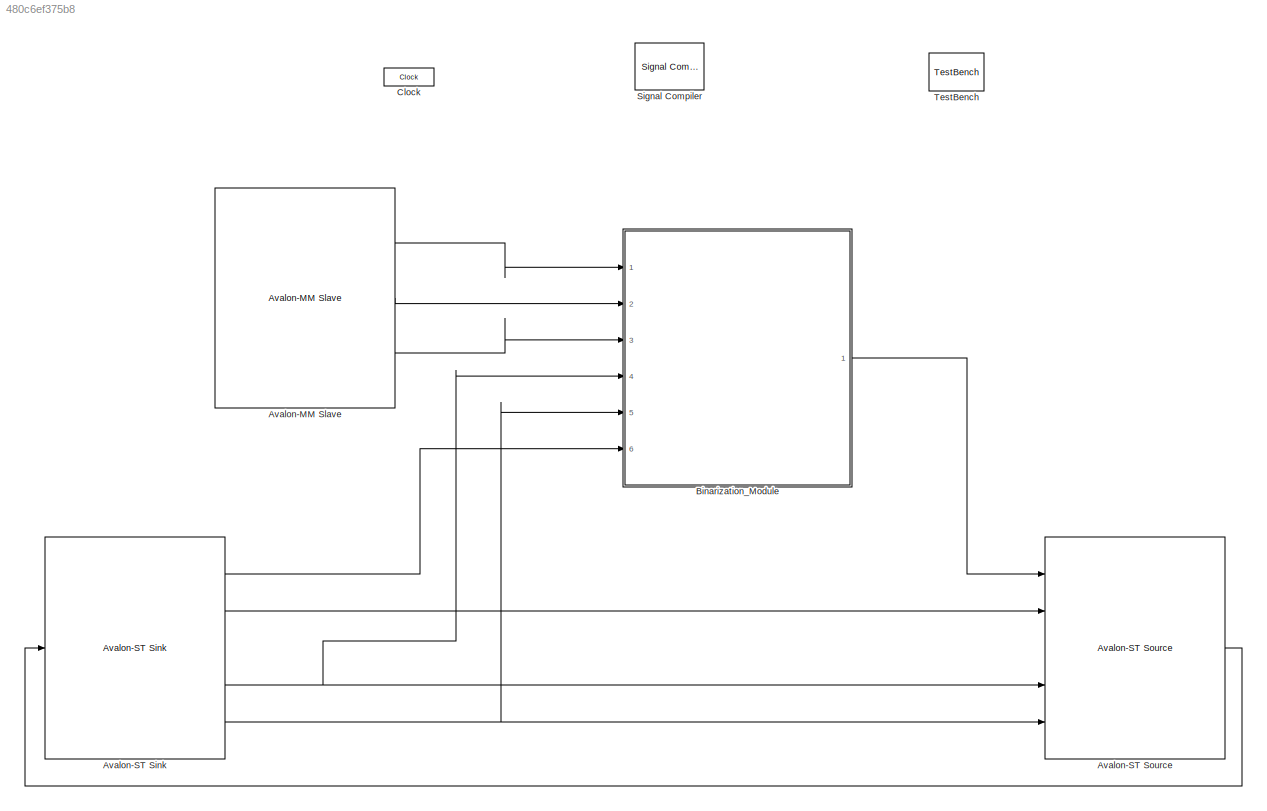
MODEL slx_480c6ef375b8
KIND model
CONFIG InitFcn = %% DSPBuilder Start\nalt_dspbuilder_update_model(bdroot)\n%% DSPBuilder End\n
BLOCK [Reference] Avalon-MM Slave  REF=allblocks_alteradspbuilder2/Avalon-MM Slave
  BusType = Unsigned Integer
  PORTTYPE = Output
  Ports = [3, 3]
  SourceBlock = allblocks_alteradspbuilder2/Avalon-MM Slave
  SourceType = Avalon-MM Slave AlteraBlockset
  SpecifyClock = off
  addrAlignment = Dynamic
  addrType = Write
  addrWidth = 2
  burst = off
  bwl = 32
  bwr = 0
  byteEnable = off
  externalType = Inferred
  flowCtrl = off
  iofile = <path>,<path>,<path>,
  irq = off
  maxBurst = 4
  pipeline = off
  readLatencyCycles = 0
  readLatencyFormat = Fixed
  readWaitStateCycles = 0
  receiveBeginTransfer = off
  useChipSelect = off
  waitStateFormat = Fixed
  writeWaitStateCycles = 1
BLOCK [Reference] Avalon-ST Sink  REF=allblocks_alteradspbuilder2/Avalon-ST Sink
  BusType = Unsigned Integer
  PORTTYPE = Output
  Ports = [5, 5]
  SourceBlock = allblocks_alteradspbuilder2/Avalon-ST Sink
  SourceType = Avalon-ST Sink AlteraBlockset
  SpecifyClock = off
  bwl = 24
  bwr = 0
  empty = off
  endOfPacket = on
  externalType = Inferred
  iofile = <path>,<path>,<path>,<path><+231ch>
  numOfChannels = 0
  numOfErrorDescriptors = 0
  readyLatency = 1
  startOfPacket = on
  symbolWidth = 8
  symbolsPerBeat = 3
BLOCK [Reference] Avalon-ST Source  REF=allblocks_alteradspbuilder2/Avalon-ST Source
  BusType = Unsigned Integer
  PORTTYPE = Input
  Ports = [5, 5]
  SourceBlock = allblocks_alteradspbuilder2/Avalon-ST Source
  SourceType = Avalon-ST Source AlteraBlockset
  SpecifyClock = off
  bwl = 24
  bwr = 0
  empty = off
  endOfPacket = on
  externalType = Inferred
  iofile = <path>,<path>,<path>,<path><+250ch>
  numOfChannels = 0
  numOfErrorDescriptors = 0
  readyLatency = 1
  startOfPacket = on
  symbolWidth = 8
  symbolsPerBeat = 3
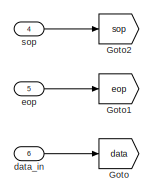
[diagram: Binarization_Module - part 1/3, top left region]
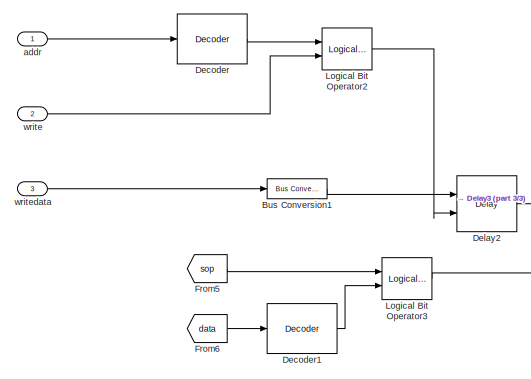
[diagram: Binarization_Module - part 2/3, middle left region]
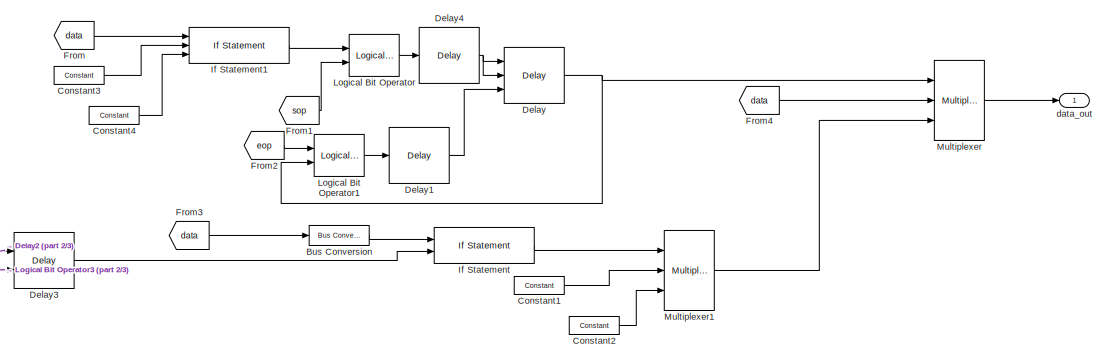
[diagram: Binarization_Module - part 3/3, middle right region]
BLOCK [SubSystem] Binarization_Module
  FunctionWithSeparateData = off
  MaskHideContents = off
  MinAlgLoopOccurrences = off
  Opaque = off
  Ports = [6, 1]
  PropExecContextOutsideSubsystem = off
  RTWSystemCode = Auto
  RequestExecContextInheritance = off
BLOCK [Reference] Binarization_Module/Bus Conversion  REF=allblocks_alteradspbuilder2/Bus Conversion
  BusType = Unsigned Integer
  Ports = [1, 1]
  SourceBlock = allblocks_alteradspbuilder2/Bus Conversion
  SourceType = Bus Conversion AlteraBlockset
  bitToConnectToOutputLSB = 0
  bwl = 8
  bwr = 1
  ibwl = 24
  ibwr = 1
  pipeline_display = 0
  round = off
  saturate = off
BLOCK [Reference] Binarization_Module/Bus Conversion1  REF=allblocks_alteradspbuilder2/Bus Conversion
  BusType = Unsigned Integer
  Ports = [1, 1]
  SourceBlock = allblocks_alteradspbuilder2/Bus Conversion
  SourceType = Bus Conversion AlteraBlockset
  bitToConnectToOutputLSB = 0
  bwl = 8
  bwr = 1
  ibwl = 24
  ibwr = 1
  pipeline_display = 0
  round = off
  saturate = off
BLOCK [Reference] Binarization_Module/Constant1  REF=allblocks_alteradspbuilder2/Constant
  BusType = Unsigned Integer
  Ports = [0, 1]
  SourceBlock = allblocks_alteradspbuilder2/Constant
  SourceType = Constant AlteraBlockset
  SpecifyClock = off
  allowFloatingPointOverride = on
  bwl = 24
  bwr = 0
  logFile = <path>%5FModule_Constant1.fixedpointlog
  logOutputs = off
  mask_cst = 0
  roundMode = Truncate
  satMode = Wrap
BLOCK [Reference] Binarization_Module/Constant2  REF=allblocks_alteradspbuilder2/Constant
  BusType = Unsigned Integer
  Ports = [0, 1]
  SourceBlock = allblocks_alteradspbuilder2/Constant
  SourceType = Constant AlteraBlockset
  SpecifyClock = off
  allowFloatingPointOverride = on
  bwl = 24
  bwr = 0
  logFile = <path>%5FModule_Constant2.fixedpointlog
  logOutputs = off
  mask_cst = 16777215
  roundMode = Truncate
  satMode = Wrap
BLOCK [Reference] Binarization_Module/Constant3  REF=allblocks_alteradspbuilder2/Constant
  BusType = Unsigned Integer
  Ports = [0, 1]
  SourceBlock = allblocks_alteradspbuilder2/Constant
  SourceType = Constant AlteraBlockset
  SpecifyClock = off
  allowFloatingPointOverride = on
  bwl = 24
  bwr = 0
  logFile = <path>%5FModule_Constant3.fixedpointlog
  logOutputs = off
  mask_cst = 0
  roundMode = Truncate
  satMode = Wrap
BLOCK [Reference] Binarization_Module/Constant4  REF=allblocks_alteradspbuilder2/Constant
  BusType = Unsigned Integer
  Ports = [0, 1]
  SourceBlock = allblocks_alteradspbuilder2/Constant
  SourceType = Constant AlteraBlockset
  SpecifyClock = off
  allowFloatingPointOverride = on
  bwl = 24
  bwr = 0
  logFile = <path>%5FModule_Constant4.fixedpointlog
  logOutputs = off
  mask_cst = 15
  roundMode = Truncate
  satMode = Wrap
BLOCK [Reference] Binarization_Module/Decoder  REF=allblocks_alteradspbuilder2/Decoder
  BusType = Unsigned Integer
  Ports = [1, 1]
  SourceBlock = allblocks_alteradspbuilder2/Decoder
  SourceType = Decoder AlteraBlockset
  bwl = 2
  bwr = 2
  pipeline_display = 1
  registered = on
  value = 1
BLOCK [Reference] Binarization_Module/Decoder1  REF=allblocks_alteradspbuilder2/Decoder
  BusType = Unsigned Integer
  Ports = [1, 1]
  SourceBlock = allblocks_alteradspbuilder2/Decoder
  SourceType = Decoder AlteraBlockset
  bwl = 24
  bwr = 2
  pipeline_display = 0
  registered = off
  value = 15
BLOCK [Reference] Binarization_Module/Delay  REF=allblocks_alteradspbuilder2/Delay
  ClockPhase = 1
  Ports = [3, 1]
  SourceBlock = allblocks_alteradspbuilder2/Delay
  SourceType = Delay AlteraBlockset
  allowFloatingPointOverride = on
  logFile = <path>%5FModule_Delay.fixedpointlog
  logOutputs = off
  pipeline = 1
  pipeline_display = 1
  reset_value = 0
  use_ena = on
  use_init = on
  use_sclr = on
BLOCK [Reference] Binarization_Module/Delay1  REF=allblocks_alteradspbuilder2/Delay
  ClockPhase = 1
  Ports = [1, 1]
  SourceBlock = allblocks_alteradspbuilder2/Delay
  SourceType = Delay AlteraBlockset
  allowFloatingPointOverride = on
  logFile = <path>%5FModule_Delay1.fixedpointlog
  logOutputs = off
  pipeline = 1
  pipeline_display = 1
  reset_value = 0
  use_ena = off
  use_init = off
  use_sclr = off
BLOCK [Reference] Binarization_Module/Delay2  REF=allblocks_alteradspbuilder2/Delay
  ClockPhase = 1
  Ports = [2, 1]
  SourceBlock = allblocks_alteradspbuilder2/Delay
  SourceType = Delay AlteraBlockset
  allowFloatingPointOverride = on
  logFile = <path>%5FModule_Delay2.fixedpointlog
  logOutputs = off
  pipeline = 1
  pipeline_display = 1
  reset_value = 127
  use_ena = on
  use_init = on
  use_sclr = off
BLOCK [Reference] Binarization_Module/Delay3  REF=allblocks_alteradspbuilder2/Delay
  ClockPhase = 1
  Ports = [2, 1]
  SourceBlock = allblocks_alteradspbuilder2/Delay
  SourceType = Delay AlteraBlockset
  allowFloatingPointOverride = on
  logFile = <path>%5FModule_Delay3.fixedpointlog
  logOutputs = off
  pipeline = 1
  pipeline_display = 1
  reset_value = 127
  use_ena = on
  use_init = on
  use_sclr = off
BLOCK [Reference] Binarization_Module/Delay4  REF=allblocks_alteradspbuilder2/Delay
  ClockPhase = 1
  Ports = [1, 1]
  SourceBlock = allblocks_alteradspbuilder2/Delay
  SourceType = Delay AlteraBlockset
  allowFloatingPointOverride = on
  logFile = <path>%5FModule_Delay4.fixedpointlog
  logOutputs = off
  pipeline = 1
  pipeline_display = 1
  reset_value = 0
  use_ena = off
  use_init = off
  use_sclr = off
BLOCK [From] Binarization_Module/From
  GotoTag = data
BLOCK [From] Binarization_Module/From1
  GotoTag = sop
BLOCK [From] Binarization_Module/From2
  GotoTag = eop
BLOCK [From] Binarization_Module/From3
  GotoTag = data
BLOCK [From] Binarization_Module/From4
  GotoTag = data
BLOCK [From] Binarization_Module/From5
  GotoTag = sop
BLOCK [From] Binarization_Module/From6
  GotoTag = data
BLOCK [Goto] Binarization_Module/Goto
  GotoTag = data
BLOCK [Goto] Binarization_Module/Goto1
  GotoTag = eop
BLOCK [Goto] Binarization_Module/Goto2
  GotoTag = sop
BLOCK [Reference] Binarization_Module/If Statement  REF=allblocks_alteradspbuilder2/If Statement
  BusType = Unsigned Integer
  Ports = [2, 1]
  SourceBlock = allblocks_alteradspbuilder2/If Statement
  SourceType = If Statement AlteraBlockset
  bwl = 8
  bwr = 0
  if_expression = a>b
  pipeline_display = 1
  use_else_output = off
  use_elseif_input = off
  user_inputs = 2
BLOCK [Reference] Binarization_Module/If Statement1  REF=allblocks_alteradspbuilder2/If Statement
  BusType = Unsigned Integer
  Ports = [3, 1]
  SourceBlock = allblocks_alteradspbuilder2/If Statement
  SourceType = If Statement AlteraBlockset
  bwl = 24
  bwr = 0
  if_expression = (a=b)&(a~c)
  pipeline_display = 1
  use_else_output = off
  use_elseif_input = off
  user_inputs = 3
BLOCK [Reference] Binarization_Module/Logical Bit Operator  REF=allblocks_alteradspbuilder2/Logical Bit Operator
  LogicalOperator = AND
  Ports = [2, 1]
  SourceBlock = allblocks_alteradspbuilder2/Logical Bit Operator
  SourceType = Logical Bit Operator AlteraBlockset
  pipeline_display = 0
  user_inputs = 2
BLOCK [Reference] Binarization_Module/Logical Bit Operator1  REF=allblocks_alteradspbuilder2/Logical Bit Operator
  LogicalOperator = AND
  Ports = [2, 1]
  SourceBlock = allblocks_alteradspbuilder2/Logical Bit Operator
  SourceType = Logical Bit Operator AlteraBlockset
  pipeline_display = 0
  user_inputs = 2
BLOCK [Reference] Binarization_Module/Logical Bit Operator2  REF=allblocks_alteradspbuilder2/Logical Bit Operator
  LogicalOperator = AND
  Ports = [2, 1]
  SourceBlock = allblocks_alteradspbuilder2/Logical Bit Operator
  SourceType = Logical Bit Operator AlteraBlockset
  pipeline_display = 0
  user_inputs = 2
BLOCK [Reference] Binarization_Module/Logical Bit Operator3  REF=allblocks_alteradspbuilder2/Logical Bit Operator
  LogicalOperator = AND
  Ports = [2, 1]
  SourceBlock = allblocks_alteradspbuilder2/Logical Bit Operator
  SourceType = Logical Bit Operator AlteraBlockset
  pipeline_display = 0
  user_inputs = 2
BLOCK [Reference] Binarization_Module/Multiplexer  REF=allblocks_alteradspbuilder2/Multiplexer
  Ports = [3, 1]
  SourceBlock = allblocks_alteradspbuilder2/Multiplexer
  SourceType = Multiplexer AlteraBlockset
  allowFloatingPointOverride = on
  logFile = <path>%5FModule_Multiplexer.fixedpointlog
  logOutputs = off
  numInputs = 2
  oneHot = off
  pipeline = 0
  pipeline_display = 0
  use_aclr = off
  use_ena = off
BLOCK [Reference] Binarization_Module/Multiplexer1  REF=allblocks_alteradspbuilder2/Multiplexer
  Ports = [3, 1]
  SourceBlock = allblocks_alteradspbuilder2/Multiplexer
  SourceType = Multiplexer AlteraBlockset
  allowFloatingPointOverride = on
  logFile = <path>%5FModule_Multiplexer1.fixedpointlog
  logOutputs = off
  numInputs = 2
  oneHot = off
  pipeline = 0
  pipeline_display = 0
  use_aclr = off
  use_ena = off
BLOCK [Inport] Binarization_Module/addr
  IconDisplay = Port number
BLOCK [Inport] Binarization_Module/data_in
  IconDisplay = Port number
  Port = 6
BLOCK [Outport] Binarization_Module/data_out
  IconDisplay = Port number
BLOCK [Inport] Binarization_Module/eop
  IconDisplay = Port number
  Port = 5
BLOCK [Inport] Binarization_Module/sop
  IconDisplay = Port number
  Port = 4
BLOCK [Inport] Binarization_Module/write
  IconDisplay = Port number
  Port = 2
BLOCK [Inport] Binarization_Module/writedata
  IconDisplay = Port number
  Port = 3
BLOCK [Reference] Clock  REF=allblocks_alteradspbuilder2/Clock
  ClockPeriod = 7.5
  ClockPeriodUnit = ns
  Export = off
  PhaseOffset = 0
  Ports = []
  Reset = aclr
  ResetLatency = 0
  ResetRegisterCascadeDepth = 0
  ResetType = Active Low
  SampleTime = 1
  SimulationStartCycle = 5
  SourceBlock = allblocks_alteradspbuilder2/Clock
  SourceType = BaseClock AlteraBlockset
BLOCK [Reference] Signal Compiler  REF=allblocks_alteradspbuilder2/Signal Compiler
  DeviceFamily = Cyclone V
  DeviceName = AUTO
  DisableEarlyHDLGeneration = off
  EnableSignalTap = off
  ExportDir = <path>
  Ports = []
  SignalTapDepth = 128
  SourceBlock = allblocks_alteradspbuilder2/Signal Compiler
  SourceType = Signal Compiler AlteraBlockset
  StpClock = Clock
  StpUseDefaultClock = on
  UseBoardBlock = off
BLOCK [Reference] TestBench  REF=allblocks_alteradspbuilder2/TestBench
  Ports = []
  SourceBlock = allblocks_alteradspbuilder2/TestBench
  SourceType = TestBench AlteraBlockset
  advancedMode = on
  enable = on
  maxDisplayErrors = 10
  mismatchErrorLevel = Error
  modelSimGui = on
  simdatafile = <path>
LINE Avalon-MM Slave:1 -> Binarization_Module:1
LINE Avalon-MM Slave:2 -> Binarization_Module:2
LINE Avalon-MM Slave:3 -> Binarization_Module:3
LINE Avalon-ST Sink:1 -> Binarization_Module:6
LINE Avalon-ST Sink:2 -> Avalon-ST Source:2
NET Avalon-ST Sink:4 -> Avalon-ST Source:4, Binarization_Module:4
NET Avalon-ST Sink:5 -> Avalon-ST Source:5, Binarization_Module:5
LINE Avalon-ST Source:3 -> Avalon-ST Sink:3
LINE Binarization_Module/Bus Conversion1:1 -> Binarization_Module/Delay2:1
LINE Binarization_Module/Bus Conversion:1 -> Binarization_Module/If Statement:1
LINE Binarization_Module/Constant1:1 -> Binarization_Module/Multiplexer1:2
LINE Binarization_Module/Constant2:1 -> Binarization_Module/Multiplexer1:3
LINE Binarization_Module/Constant3:1 -> Binarization_Module/If Statement1:2
LINE Binarization_Module/Constant4:1 -> Binarization_Module/If Statement1:3
LINE Binarization_Module/Decoder1:1 -> Binarization_Module/Logical Bit Operator3:2
LINE Binarization_Module/Decoder:1 -> Binarization_Module/Logical Bit Operator2:1
LINE Binarization_Module/Delay1:1 -> Binarization_Module/Delay:3
LINE Binarization_Module/Delay2:1 -> Binarization_Module/Delay3:1
LINE Binarization_Module/Delay3:1 -> Binarization_Module/If Statement:2
NET Binarization_Module/Delay4:1 -> Binarization_Module/Delay:1, Binarization_Module/Delay:2
NET Binarization_Module/Delay:1 -> Binarization_Module/Logical Bit Operator1:2, Binarization_Module/Multiplexer:1
LINE Binarization_Module/From1:1 -> Binarization_Module/Logical Bit Operator:2
LINE Binarization_Module/From2:1 -> Binarization_Module/Logical Bit Operator1:1
LINE Binarization_Module/From3:1 -> Binarization_Module/Bus Conversion:1
LINE Binarization_Module/From4:1 -> Binarization_Module/Multiplexer:2
LINE Binarization_Module/From5:1 -> Binarization_Module/Logical Bit Operator3:1
LINE Binarization_Module/From6:1 -> Binarization_Module/Decoder1:1
LINE Binarization_Module/From:1 -> Binarization_Module/If Statement1:1
LINE Binarization_Module/If Statement1:1 -> Binarization_Module/Logical Bit Operator:1
LINE Binarization_Module/If Statement:1 -> Binarization_Module/Multiplexer1:1
LINE Binarization_Module/Logical Bit Operator1:1 -> Binarization_Module/Delay1:1
LINE Binarization_Module/Logical Bit Operator2:1 -> Binarization_Module/Delay2:2
LINE Binarization_Module/Logical Bit Operator3:1 -> Binarization_Module/Delay3:2
LINE Binarization_Module/Logical Bit Operator:1 -> Binarization_Module/Delay4:1
LINE Binarization_Module/Multiplexer1:1 -> Binarization_Module/Multiplexer:3
LINE Binarization_Module/Multiplexer:1 -> Binarization_Module/data_out:1
LINE Binarization_Module/addr:1 -> Binarization_Module/Decoder:1
LINE Binarization_Module/data_in:1 -> Binarization_Module/Goto:1
LINE Binarization_Module/eop:1 -> Binarization_Module/Goto1:1
LINE Binarization_Module/sop:1 -> Binarization_Module/Goto2:1
LINE Binarization_Module/write:1 -> Binarization_Module/Logical Bit Operator2:2
LINE Binarization_Module/writedata:1 -> Binarization_Module/Bus Conversion1:1
LINE Binarization_Module:1 -> Avalon-ST Source:1
note: NET lines group one-source signal fan-out (src -> all destinations, sorted); 1:1 wires keep LINE
note: 24 file-system paths scrubbed to <path> (not preserved elsewhere — flat text is the only slx artifact)
